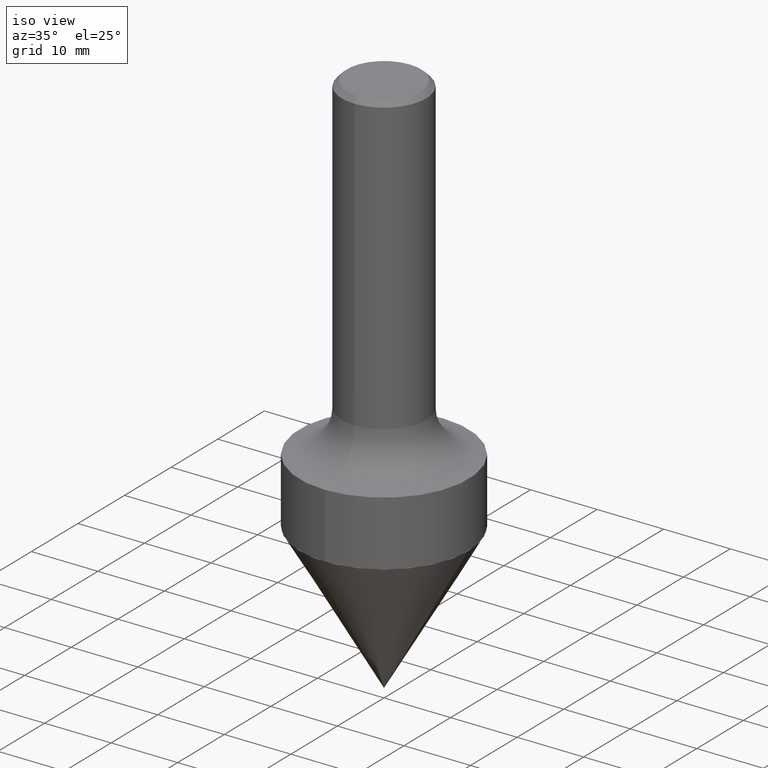
[diagram: clean part render]
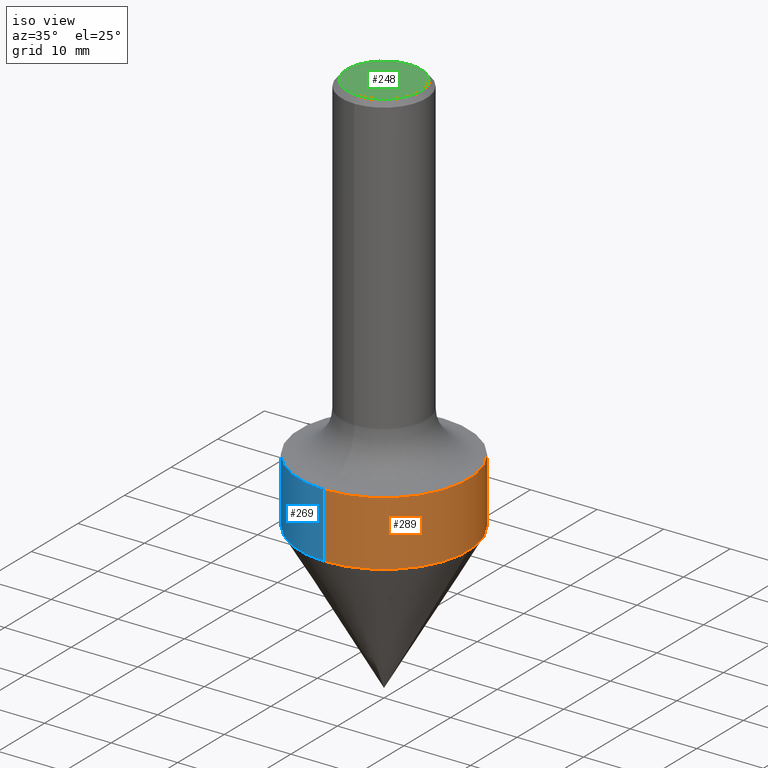
[diagram: same view with three faces highlighted in distinct colors, each labeled with its STEP entity id]
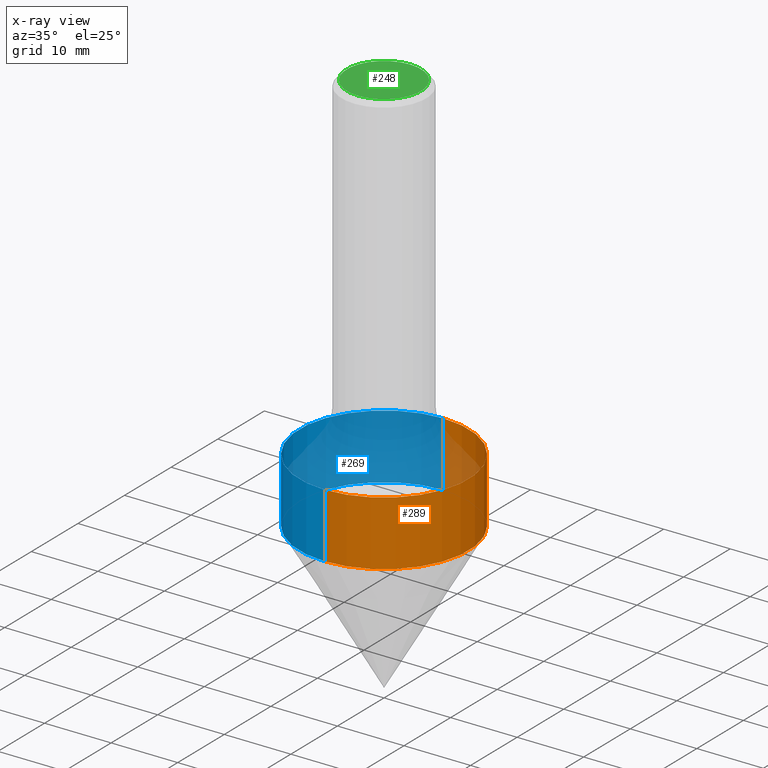
[diagram: x-ray of the same camera — body ghosted, the three highlighted faces saturated]
A machine part, iso view with three faces highlighted in distinct colors.
The next image is the same camera in x-ray (body ghosted, the three faces saturated) — at least one of them is partly hidden behind the body in this view.
Their STEP definitions:

[orange] entity #289 — the highlighted cylindrical surface (partial cylindrical patch) has radius 12.7 mm, axis along (-0, 0, 1).
#15 = EDGE_CURVE ( 'NONE', #16, #353, #297, .T. ) ;
#16 = VERTEX_POINT ( 'NONE', #158 ) ;
#62 = ORIENTED_EDGE ( 'NONE', *, *, #15, .F. ) ;
#63 = DIRECTION ( 'NONE',  ( -2.426805345035298041E-29, 3.518208477467954013E-15, 1.000000000000000000 ) ) ;
#92 = LINE ( 'NONE', #95, #440 ) ;
#95 = CARTESIAN_POINT ( 'NONE',  ( 3.552713678800498563E-15, 0.4999999999999997224, -1.759104238733976217E-15 ) ) ;
#103 = CARTESIAN_POINT ( 'NONE',  ( 5.783015487179245881E-29, -8.383801425996346326E-15, -2.382974596215556851 ) ) ;
#115 = DIRECTION ( 'NONE',  ( -2.426805345035298041E-29, 3.518208477467954013E-15, 1.000000000000000000 ) ) ;
#148 = CARTESIAN_POINT ( 'NONE',  ( -3.491481338843082868E-15, -0.5000000000000067724, -1.999999999999998446 ) ) ;
#158 = CARTESIAN_POINT ( 'NONE',  ( -3.491481338843073402E-15, -0.5000000000000081046, -2.382974596215555518 ) ) ;
#162 = EDGE_LOOP ( 'NONE', ( #380, #368, #351, #62 ) ) ;
#187 = AXIS2_PLACEMENT_3D ( 'NONE', #290, #476, #443 ) ;
#210 = EDGE_CURVE ( 'NONE', #319, #470, #92, .T. ) ;
#230 = CARTESIAN_POINT ( 'NONE',  ( -3.491481338843130989E-15, -0.4999999999999997224, 1.759104238733976217E-15 ) ) ;
#251 = VECTOR ( 'NONE', #348, 39.37007874015748143 ) ;
#262 = CARTESIAN_POINT ( 'NONE',  ( 4.853610690070596082E-29, -7.036416954935907236E-15, -2.000000000000000000 ) ) ;
#280 = CARTESIAN_POINT ( 'NONE',  ( 3.552713678800551416E-15, 0.4999999999999913403, -2.382974596215558627 ) ) ;
#289 = ADVANCED_FACE ( 'NONE', ( #436 ), #483, .T. ) ;
#290 = CARTESIAN_POINT ( 'NONE',  ( 0.000000000000000000, 0.000000000000000000, 0.000000000000000000 ) ) ;
#297 = LINE ( 'NONE', #230, #251 ) ;
#298 = EDGE_CURVE ( 'NONE', #16, #319, #479, .T. ) ;
#319 = VERTEX_POINT ( 'NONE', #280 ) ;
#323 = DIRECTION ( 'NONE',  ( -2.426805345035298041E-29, 3.518208477467954013E-15, 1.000000000000000000 ) ) ;
#329 = AXIS2_PLACEMENT_3D ( 'NONE', #103, #63, #366 ) ;
#348 = DIRECTION ( 'NONE',  ( -2.426805345035298041E-29, 3.518208477467954013E-15, 1.000000000000000000 ) ) ;
#349 = AXIS2_PLACEMENT_3D ( 'NONE', #262, #115, #485 ) ;
#351 = ORIENTED_EDGE ( 'NONE', *, *, #357, .F. ) ;
#353 = VERTEX_POINT ( 'NONE', #148 ) ;
#357 = EDGE_CURVE ( 'NONE', #353, #470, #460, .T. ) ;
#366 = DIRECTION ( 'NONE',  ( -6.982962677686265922E-15, -1.000000000000000000, 3.278217592397117834E-15 ) ) ;
#368 = ORIENTED_EDGE ( 'NONE', *, *, #210, .T. ) ;
#380 = ORIENTED_EDGE ( 'NONE', *, *, #298, .T. ) ;
#411 = CARTESIAN_POINT ( 'NONE',  ( 3.552713678800546683E-15, 0.4999999999999927280, -2.000000000000001776 ) ) ;
#436 = FACE_OUTER_BOUND ( 'NONE', #162, .T. ) ;
#440 = VECTOR ( 'NONE', #323, 39.37007874015748143 ) ;
#443 = DIRECTION ( 'NONE',  ( -6.982962677686265922E-15, -1.000000000000000000, 3.518208477467954407E-15 ) ) ;
#460 = CIRCLE ( 'NONE', #349, 0.4999999999999997224 ) ;
#470 = VERTEX_POINT ( 'NONE', #411 ) ;
#476 = DIRECTION ( 'NONE',  ( -2.426805345035298041E-29, 3.518208477467954013E-15, 1.000000000000000000 ) ) ;
#479 = CIRCLE ( 'NONE', #329, 0.4999999999999997224 ) ;
#483 = CYLINDRICAL_SURFACE ( 'NONE', #187, 0.4999999999999997224 ) ;
#485 = DIRECTION ( 'NONE',  ( -6.982962677686265922E-15, -1.000000000000000000, 3.278217592397117834E-15 ) ) ;

[blue] entity #269 — the highlighted cylindrical surface (partial cylindrical patch) has radius 12.7 mm, axis along (-0, 0, 1).
#15 = EDGE_CURVE ( 'NONE', #16, #353, #297, .T. ) ;
#16 = VERTEX_POINT ( 'NONE', #158 ) ;
#37 = CIRCLE ( 'NONE', #288, 0.4999999999999997224 ) ;
#66 = AXIS2_PLACEMENT_3D ( 'NONE', #361, #133, #318 ) ;
#92 = LINE ( 'NONE', #95, #440 ) ;
#95 = CARTESIAN_POINT ( 'NONE',  ( 3.552713678800498563E-15, 0.4999999999999997224, -1.759104238733976217E-15 ) ) ;
#131 = DIRECTION ( 'NONE',  ( -6.982962677686265922E-15, -1.000000000000000000, 3.518208477467954407E-15 ) ) ;
#133 = DIRECTION ( 'NONE',  ( -2.426805345035298041E-29, 3.518208477467954013E-15, 1.000000000000000000 ) ) ;
#148 = CARTESIAN_POINT ( 'NONE',  ( -3.491481338843082868E-15, -0.5000000000000067724, -1.999999999999998446 ) ) ;
#158 = CARTESIAN_POINT ( 'NONE',  ( -3.491481338843073402E-15, -0.5000000000000081046, -2.382974596215555518 ) ) ;
#160 = EDGE_CURVE ( 'NONE', #319, #16, #37, .T. ) ;
#173 = AXIS2_PLACEMENT_3D ( 'NONE', #320, #403, #131 ) ;
#191 = EDGE_LOOP ( 'NONE', ( #345, #463, #286, #424 ) ) ;
#209 = FACE_OUTER_BOUND ( 'NONE', #191, .T. ) ;
#210 = EDGE_CURVE ( 'NONE', #319, #470, #92, .T. ) ;
#220 = CIRCLE ( 'NONE', #66, 0.4999999999999997224 ) ;
#230 = CARTESIAN_POINT ( 'NONE',  ( -3.491481338843130989E-15, -0.4999999999999997224, 1.759104238733976217E-15 ) ) ;
#251 = VECTOR ( 'NONE', #348, 39.37007874015748143 ) ;
#255 = CYLINDRICAL_SURFACE ( 'NONE', #173, 0.4999999999999997224 ) ;
#269 = ADVANCED_FACE ( 'NONE', ( #209 ), #255, .T. ) ;
#280 = CARTESIAN_POINT ( 'NONE',  ( 3.552713678800551416E-15, 0.4999999999999913403, -2.382974596215558627 ) ) ;
#281 = EDGE_CURVE ( 'NONE', #470, #353, #220, .T. ) ;
#286 = ORIENTED_EDGE ( 'NONE', *, *, #15, .T. ) ;
#288 = AXIS2_PLACEMENT_3D ( 'NONE', #370, #326, #292 ) ;
#292 = DIRECTION ( 'NONE',  ( -6.982962677686265922E-15, -1.000000000000000000, 3.278217592397117834E-15 ) ) ;
#297 = LINE ( 'NONE', #230, #251 ) ;
#318 = DIRECTION ( 'NONE',  ( -6.982962677686265922E-15, -1.000000000000000000, 3.278217592397117834E-15 ) ) ;
#319 = VERTEX_POINT ( 'NONE', #280 ) ;
#320 = CARTESIAN_POINT ( 'NONE',  ( 0.000000000000000000, 0.000000000000000000, 0.000000000000000000 ) ) ;
#323 = DIRECTION ( 'NONE',  ( -2.426805345035298041E-29, 3.518208477467954013E-15, 1.000000000000000000 ) ) ;
#326 = DIRECTION ( 'NONE',  ( -2.426805345035298041E-29, 3.518208477467954013E-15, 1.000000000000000000 ) ) ;
#345 = ORIENTED_EDGE ( 'NONE', *, *, #210, .F. ) ;
#348 = DIRECTION ( 'NONE',  ( -2.426805345035298041E-29, 3.518208477467954013E-15, 1.000000000000000000 ) ) ;
#353 = VERTEX_POINT ( 'NONE', #148 ) ;
#361 = CARTESIAN_POINT ( 'NONE',  ( 4.853610690070596082E-29, -7.036416954935907236E-15, -2.000000000000000000 ) ) ;
#370 = CARTESIAN_POINT ( 'NONE',  ( 5.783015487179245881E-29, -8.383801425996346326E-15, -2.382974596215556851 ) ) ;
#403 = DIRECTION ( 'NONE',  ( -2.426805345035298041E-29, 3.518208477467954013E-15, 1.000000000000000000 ) ) ;
#411 = CARTESIAN_POINT ( 'NONE',  ( 3.552713678800546683E-15, 0.4999999999999927280, -2.000000000000001776 ) ) ;
#424 = ORIENTED_EDGE ( 'NONE', *, *, #281, .F. ) ;
#440 = VECTOR ( 'NONE', #323, 39.37007874015748143 ) ;
#463 = ORIENTED_EDGE ( 'NONE', *, *, #160, .T. ) ;
#470 = VERTEX_POINT ( 'NONE', #411 ) ;

[green] entity #248 — the highlighted planar face has unit normal (0, -0, -1).
#28 = CARTESIAN_POINT ( 'NONE',  ( 1.527872233877754946E-15, 0.2187999999999999945, -7.630330446570988685E-16 ) ) ;
#30 = CARTESIAN_POINT ( 'NONE',  ( -3.276658119362871831E-46, 4.750264126824306074E-32, 1.350194042577903107E-17 ) ) ;
#47 = VERTEX_POINT ( 'NONE', #417 ) ;
#58 = DIRECTION ( 'NONE',  ( 2.426805345035297761E-29, -3.518208477467954013E-15, -1.000000000000000000 ) ) ;
#97 = PLANE ( 'NONE',  #356 ) ;
#104 = DIRECTION ( 'NONE',  ( -6.982962677686265922E-15, -1.000000000000000000, 3.518208477467954013E-15 ) ) ;
#132 = FACE_OUTER_BOUND ( 'NONE', #135, .T. ) ;
#135 = EDGE_LOOP ( 'NONE', ( #373, #309 ) ) ;
#143 = CARTESIAN_POINT ( 'NONE',  ( -1.608100730677646216E-15, -0.2187999999999999945, 7.832859552957674143E-16 ) ) ;
#167 = AXIS2_PLACEMENT_3D ( 'NONE', #30, #333, #104 ) ;
#169 = DIRECTION ( 'NONE',  ( 6.982962677686265922E-15, 1.000000000000000000, -3.518208477467954013E-15 ) ) ;
#204 = VERTEX_POINT ( 'NONE', #143 ) ;
#245 = CIRCLE ( 'NONE', #410, 0.2187999999999999945 ) ;
#248 = ADVANCED_FACE ( 'NONE', ( #132 ), #97, .F. ) ;
#256 = DIRECTION ( 'NONE',  ( -2.426805345035298041E-29, 3.518208477467954013E-15, 1.000000000000000000 ) ) ;
#291 = CARTESIAN_POINT ( 'NONE',  ( -3.276658119362871831E-46, 4.750264126824306074E-32, 1.350194042577903107E-17 ) ) ;
#296 = DIRECTION ( 'NONE',  ( -6.982962677686265922E-15, -1.000000000000000000, 3.518208477467954013E-15 ) ) ;
#309 = ORIENTED_EDGE ( 'NONE', *, *, #472, .T. ) ;
#333 = DIRECTION ( 'NONE',  ( -2.426805345035298041E-29, 3.518208477467954013E-15, 1.000000000000000000 ) ) ;
#356 = AXIS2_PLACEMENT_3D ( 'NONE', #28, #58, #169 ) ;
#373 = ORIENTED_EDGE ( 'NONE', *, *, #486, .T. ) ;
#410 = AXIS2_PLACEMENT_3D ( 'NONE', #291, #256, #296 ) ;
#417 = CARTESIAN_POINT ( 'NONE',  ( 1.636806451649661108E-15, 0.2187999999999999945, -7.562820744442092875E-16 ) ) ;
#467 = CIRCLE ( 'NONE', #167, 0.2187999999999999945 ) ;
#472 = EDGE_CURVE ( 'NONE', #204, #47, #467, .T. ) ;
#486 = EDGE_CURVE ( 'NONE', #47, #204, #245, .T. ) ;